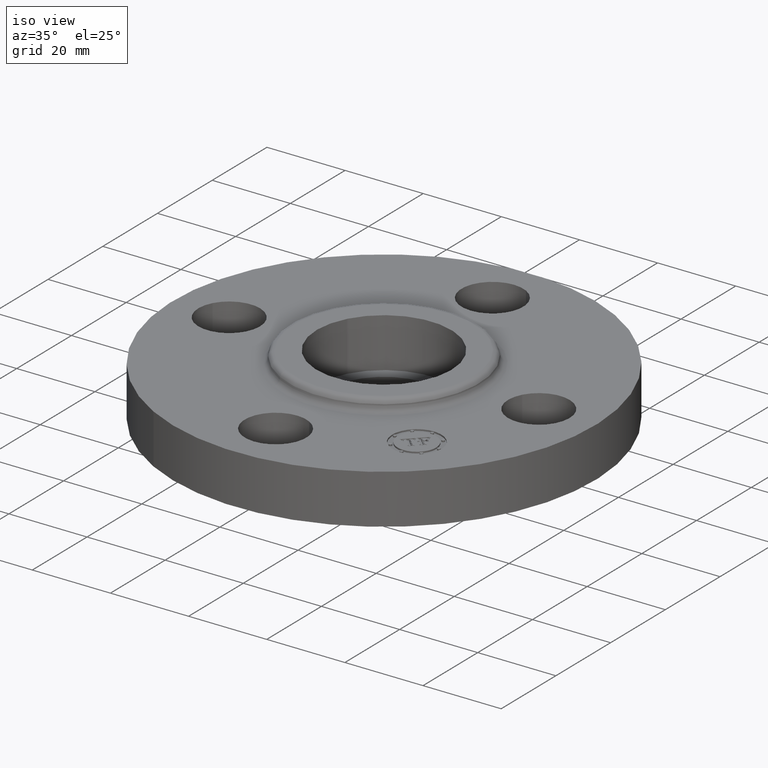
[diagram: clean part render]
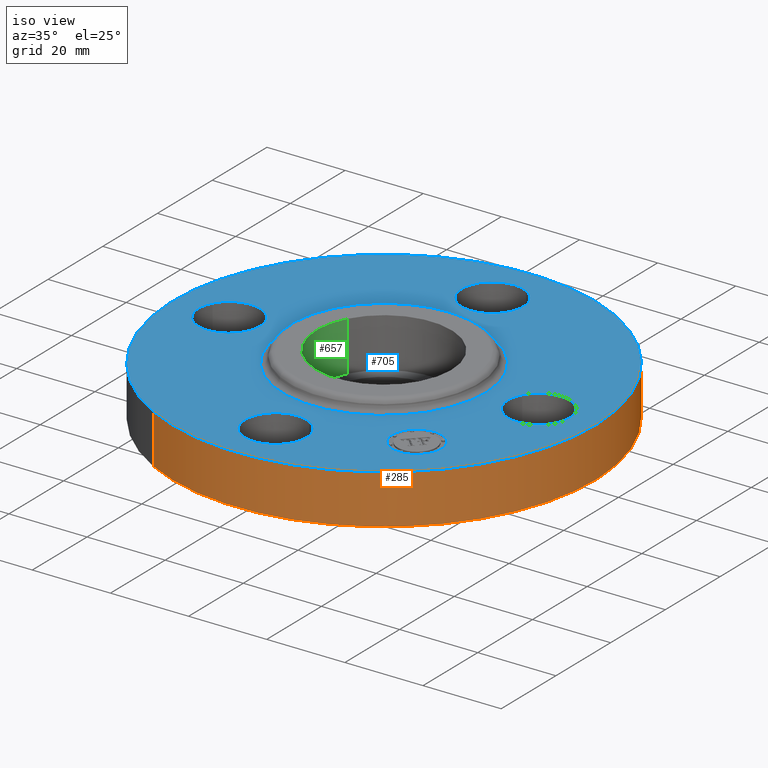
[diagram: same view with three faces highlighted in distinct colors, each labeled with its STEP entity id]
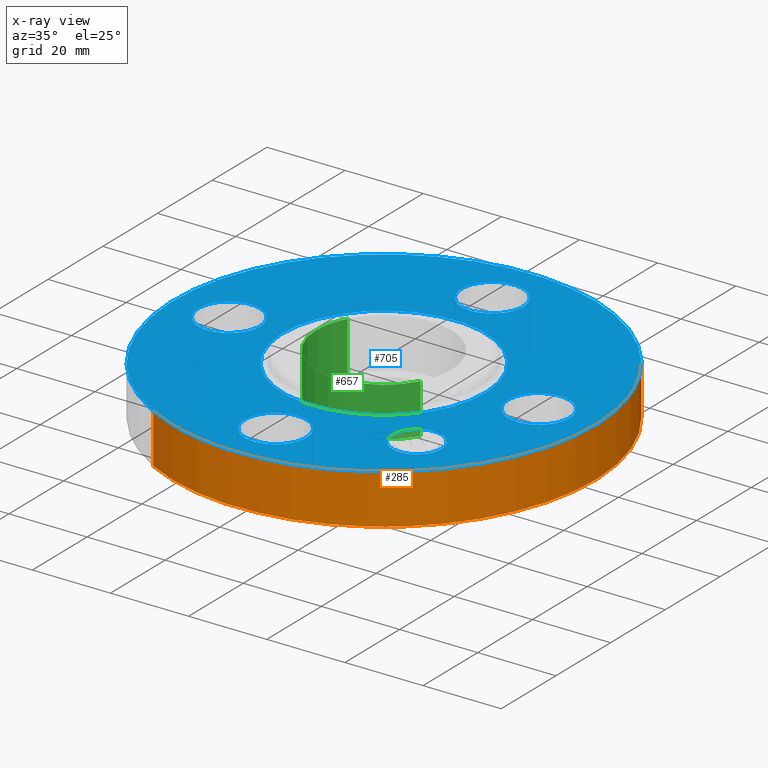
[diagram: x-ray of the same camera — body ghosted, the three highlighted faces saturated]
A machine part, iso view with three faces highlighted in distinct colors.
The next image is the same camera in x-ray (body ghosted, the three faces saturated) — at least one of them is partly hidden behind the body in this view.
Their STEP definitions:

[orange] entity #285 — the highlighted cylindrical surface (partial cylindrical patch) has radius 53.975 mm, axis along (0, 0, -1).
#159=AXIS2_PLACEMENT_3D('Circle Axis2P3D',#157,#158,$) ;
#246=AXIS2_PLACEMENT_3D('Cylinder Axis2P3D',#243,#244,#245) ;
#276=AXIS2_PLACEMENT_3D('Circle Axis2P3D',#274,#275,$) ;
#152=CARTESIAN_POINT('Vertex',(-1.01877926954,-1.86486294402,2.44773580232E-016)) ;
#154=CARTESIAN_POINT('Vertex',(1.01877926954,1.86486294402,2.44773580232E-016)) ;
#157=CARTESIAN_POINT('Axis2P3D Location',(0.,0.,0.)) ;
#243=CARTESIAN_POINT('Axis2P3D Location',(0.,0.,0.310000000001)) ;
#248=CARTESIAN_POINT('Line Origine',(-1.01877926954,-1.86486294402,0.250000000001)) ;
#252=CARTESIAN_POINT('Vertex',(-1.01877926954,-1.86486294402,0.500000000002)) ;
#259=CARTESIAN_POINT('Vertex',(1.01877926954,1.86486294402,0.500000000002)) ;
#262=CARTESIAN_POINT('Line Origine',(1.01877926954,1.86486294402,0.250000000001)) ;
#274=CARTESIAN_POINT('Axis2P3D Location',(0.,0.,0.500000000002)) ;
#158=DIRECTION('Axis2P3D Direction',(0.,0.,-0.0393700787402)) ;
#244=DIRECTION('Axis2P3D Direction',(0.,0.,-0.0393700787402)) ;
#245=DIRECTION('Axis2P3D XDirection',(0.0188750212049,0.0345504945626,0.)) ;
#249=DIRECTION('Vector Direction',(0.,0.,-0.0393700787402)) ;
#263=DIRECTION('Vector Direction',(0.,0.,-0.0393700787402)) ;
#275=DIRECTION('Axis2P3D Direction',(0.,0.,-0.0393700787402)) ;
#250=VECTOR('Line Direction',#249,0.0393700787402) ;
#264=VECTOR('Line Direction',#263,0.0393700787402) ;
#280=ORIENTED_EDGE('',*,*,#161,.F.) ;
#281=ORIENTED_EDGE('',*,*,#266,.T.) ;
#282=ORIENTED_EDGE('',*,*,#278,.T.) ;
#283=ORIENTED_EDGE('',*,*,#254,.F.) ;
#285=ADVANCED_FACE('PartBody',(#284),#247,.T.) ;
#160=CIRCLE('generated circle',#159,2.12500000001) ;
#277=CIRCLE('generated circle',#276,2.12500000001) ;
#247=CYLINDRICAL_SURFACE('generated cylinder',#246,2.12500000001) ;
#161=EDGE_CURVE('',#155,#153,#160,.T.) ;
#254=EDGE_CURVE('',#153,#253,#251,.F.) ;
#266=EDGE_CURVE('',#155,#260,#265,.F.) ;
#278=EDGE_CURVE('',#260,#253,#277,.T.) ;
#279=EDGE_LOOP('',(#280,#281,#282,#283)) ;
#284=FACE_OUTER_BOUND('',#279,.T.) ;
#251=LINE('Line',#248,#250) ;
#265=LINE('Line',#262,#264) ;
#153=VERTEX_POINT('',#152) ;
#155=VERTEX_POINT('',#154) ;
#253=VERTEX_POINT('',#252) ;
#260=VERTEX_POINT('',#259) ;

[blue] entity #705 — the highlighted planar face has unit normal (0, 0, -1).
#257=AXIS2_PLACEMENT_3D('Circle Axis2P3D',#255,#256,$) ;
#276=AXIS2_PLACEMENT_3D('Circle Axis2P3D',#274,#275,$) ;
#293=AXIS2_PLACEMENT_3D('Circle Axis2P3D',#291,#292,$) ;
#328=AXIS2_PLACEMENT_3D('Circle Axis2P3D',#326,#327,$) ;
#478=AXIS2_PLACEMENT_3D('Circle Axis2P3D',#476,#477,$) ;
#490=AXIS2_PLACEMENT_3D('Circle Axis2P3D',#488,#489,$) ;
#521=AXIS2_PLACEMENT_3D('Circle Axis2P3D',#519,#520,$) ;
#533=AXIS2_PLACEMENT_3D('Circle Axis2P3D',#531,#532,$) ;
#564=AXIS2_PLACEMENT_3D('Circle Axis2P3D',#562,#563,$) ;
#576=AXIS2_PLACEMENT_3D('Circle Axis2P3D',#574,#575,$) ;
#607=AXIS2_PLACEMENT_3D('Circle Axis2P3D',#605,#606,$) ;
#619=AXIS2_PLACEMENT_3D('Circle Axis2P3D',#617,#618,$) ;
#661=AXIS2_PLACEMENT_3D('Plane Axis2P3D',#658,#659,#660) ;
#689=AXIS2_PLACEMENT_3D('Circle Axis2P3D',#687,#688,$) ;
#698=AXIS2_PLACEMENT_3D('Circle Axis2P3D',#696,#697,$) ;
#252=CARTESIAN_POINT('Vertex',(-1.01877926954,-1.86486294402,0.500000000002)) ;
#255=CARTESIAN_POINT('Axis2P3D Location',(0.,0.,0.500000000002)) ;
#259=CARTESIAN_POINT('Vertex',(1.01877926954,1.86486294402,0.500000000002)) ;
#274=CARTESIAN_POINT('Axis2P3D Location',(0.,0.,0.500000000002)) ;
#291=CARTESIAN_POINT('Axis2P3D Location',(0.,0.,0.500000000002)) ;
#295=CARTESIAN_POINT('Vertex',(0.489179920005,0.895437837278,0.500000000002)) ;
#297=CARTESIAN_POINT('Vertex',(-0.489179920005,-0.895437837278,0.500000000002)) ;
#326=CARTESIAN_POINT('Axis2P3D Location',(0.,0.,0.500000000002)) ;
#466=CARTESIAN_POINT('Vertex',(0.148621916968,1.83205059419,0.500000000002)) ;
#473=CARTESIAN_POINT('Vertex',(-0.148621916968,1.28794940582,0.500000000002)) ;
#476=CARTESIAN_POINT('Axis2P3D Location',(-2.86567351002E-016,1.56000000001,0.500000000002)) ;
#488=CARTESIAN_POINT('Axis2P3D Location',(-2.86567351002E-016,1.56000000001,0.500000000002)) ;
#509=CARTESIAN_POINT('Vertex',(-1.83205059419,0.148621916968,0.500000000002)) ;
#516=CARTESIAN_POINT('Vertex',(-1.28794940582,-0.148621916968,0.500000000002)) ;
#519=CARTESIAN_POINT('Axis2P3D Location',(-1.56000000001,-1.91044900668E-016,0.500000000002)) ;
#531=CARTESIAN_POINT('Axis2P3D Location',(-1.56000000001,-1.91044900668E-016,0.500000000002)) ;
#552=CARTESIAN_POINT('Vertex',(-0.148621916968,-1.83205059419,0.500000000002)) ;
#559=CARTESIAN_POINT('Vertex',(0.148621916968,-1.28794940582,0.500000000002)) ;
#562=CARTESIAN_POINT('Axis2P3D Location',(-1.84218784217E-016,-1.56000000001,0.500000000002)) ;
#574=CARTESIAN_POINT('Axis2P3D Location',(-1.84218784217E-016,-1.56000000001,0.500000000002)) ;
#595=CARTESIAN_POINT('Vertex',(1.28794940582,0.148621916968,0.500000000002)) ;
#602=CARTESIAN_POINT('Vertex',(1.83205059419,-0.148621916968,0.500000000002)) ;
#605=CARTESIAN_POINT('Axis2P3D Location',(1.56000000001,0.,0.500000000002)) ;
#617=CARTESIAN_POINT('Axis2P3D Location',(1.56000000001,0.,0.500000000002)) ;
#658=CARTESIAN_POINT('Axis2P3D Location',(0.,2.12500000001,0.500000000002)) ;
#687=CARTESIAN_POINT('Axis2P3D Location',(1.10308657866,-1.10308657866,0.500000000002)) ;
#691=CARTESIAN_POINT('Vertex',(1.278095507,-0.928077650311,0.500000000002)) ;
#693=CARTESIAN_POINT('Vertex',(0.928077650311,-1.278095507,0.500000000002)) ;
#696=CARTESIAN_POINT('Axis2P3D Location',(1.10308657866,-1.10308657866,0.500000000002)) ;
#256=DIRECTION('Axis2P3D Direction',(0.,0.,-0.0393700787402)) ;
#275=DIRECTION('Axis2P3D Direction',(0.,0.,-0.0393700787402)) ;
#292=DIRECTION('Axis2P3D Direction',(0.,0.,-0.0393700787402)) ;
#327=DIRECTION('Axis2P3D Direction',(0.,0.,-0.0393700787402)) ;
#477=DIRECTION('Axis2P3D Direction',(0.,0.,-0.0393700787402)) ;
#489=DIRECTION('Axis2P3D Direction',(0.,0.,-0.0393700787402)) ;
#520=DIRECTION('Axis2P3D Direction',(-0.,0.,-0.0393700787402)) ;
#532=DIRECTION('Axis2P3D Direction',(-0.,0.,-0.0393700787402)) ;
#563=DIRECTION('Axis2P3D Direction',(0.,-0.,-0.0393700787402)) ;
#575=DIRECTION('Axis2P3D Direction',(0.,-0.,-0.0393700787402)) ;
#606=DIRECTION('Axis2P3D Direction',(0.,-0.,-0.0393700787402)) ;
#618=DIRECTION('Axis2P3D Direction',(0.,-0.,-0.0393700787402)) ;
#659=DIRECTION('Axis2P3D Direction',(0.,0.,-0.0393700787402)) ;
#660=DIRECTION('Axis2P3D XDirection',(0.0393700787402,0.,0.)) ;
#688=DIRECTION('Axis2P3D Direction',(0.,0.,-0.0393700787402)) ;
#697=DIRECTION('Axis2P3D Direction',(0.,0.,-0.0393700787402)) ;
#664=ORIENTED_EDGE('',*,*,#278,.F.) ;
#665=ORIENTED_EDGE('',*,*,#261,.F.) ;
#668=ORIENTED_EDGE('',*,*,#609,.T.) ;
#669=ORIENTED_EDGE('',*,*,#621,.T.) ;
#672=ORIENTED_EDGE('',*,*,#330,.T.) ;
#673=ORIENTED_EDGE('',*,*,#299,.T.) ;
#676=ORIENTED_EDGE('',*,*,#566,.T.) ;
#677=ORIENTED_EDGE('',*,*,#578,.T.) ;
#680=ORIENTED_EDGE('',*,*,#523,.T.) ;
#681=ORIENTED_EDGE('',*,*,#535,.T.) ;
#684=ORIENTED_EDGE('',*,*,#480,.T.) ;
#685=ORIENTED_EDGE('',*,*,#492,.T.) ;
#702=ORIENTED_EDGE('',*,*,#695,.T.) ;
#703=ORIENTED_EDGE('',*,*,#700,.T.) ;
#670=FACE_BOUND('',#667,.T.) ;
#674=FACE_BOUND('',#671,.T.) ;
#678=FACE_BOUND('',#675,.T.) ;
#682=FACE_BOUND('',#679,.T.) ;
#686=FACE_BOUND('',#683,.T.) ;
#704=FACE_BOUND('',#701,.T.) ;
#705=ADVANCED_FACE('PartBody',(#666,#670,#674,#678,#682,#686,#704),#662,.F.) ;
#258=CIRCLE('generated circle',#257,2.12500000001) ;
#277=CIRCLE('generated circle',#276,2.12500000001) ;
#294=CIRCLE('generated circle',#293,1.02034597787) ;
#329=CIRCLE('generated circle',#328,1.02034597787) ;
#479=CIRCLE('generated circle',#478,0.310000000001) ;
#491=CIRCLE('generated circle',#490,0.310000000001) ;
#522=CIRCLE('generated circle',#521,0.310000000001) ;
#534=CIRCLE('generated circle',#533,0.310000000001) ;
#565=CIRCLE('generated circle',#564,0.310000000001) ;
#577=CIRCLE('generated circle',#576,0.310000000001) ;
#608=CIRCLE('generated circle',#607,0.310000000001) ;
#620=CIRCLE('generated circle',#619,0.310000000001) ;
#690=CIRCLE('generated circle',#689,0.247500000001) ;
#699=CIRCLE('generated circle',#698,0.247500000001) ;
#261=EDGE_CURVE('',#253,#260,#258,.T.) ;
#278=EDGE_CURVE('',#260,#253,#277,.T.) ;
#299=EDGE_CURVE('',#296,#298,#294,.T.) ;
#330=EDGE_CURVE('',#298,#296,#329,.T.) ;
#480=EDGE_CURVE('',#467,#474,#479,.T.) ;
#492=EDGE_CURVE('',#474,#467,#491,.T.) ;
#523=EDGE_CURVE('',#510,#517,#522,.T.) ;
#535=EDGE_CURVE('',#517,#510,#534,.T.) ;
#566=EDGE_CURVE('',#553,#560,#565,.T.) ;
#578=EDGE_CURVE('',#560,#553,#577,.T.) ;
#609=EDGE_CURVE('',#596,#603,#608,.T.) ;
#621=EDGE_CURVE('',#603,#596,#620,.T.) ;
#695=EDGE_CURVE('',#692,#694,#690,.T.) ;
#700=EDGE_CURVE('',#694,#692,#699,.T.) ;
#663=EDGE_LOOP('',(#664,#665)) ;
#667=EDGE_LOOP('',(#668,#669)) ;
#671=EDGE_LOOP('',(#672,#673)) ;
#675=EDGE_LOOP('',(#676,#677)) ;
#679=EDGE_LOOP('',(#680,#681)) ;
#683=EDGE_LOOP('',(#684,#685)) ;
#701=EDGE_LOOP('',(#702,#703)) ;
#666=FACE_OUTER_BOUND('',#663,.T.) ;
#662=PLANE('',#661) ;
#253=VERTEX_POINT('',#252) ;
#260=VERTEX_POINT('',#259) ;
#296=VERTEX_POINT('',#295) ;
#298=VERTEX_POINT('',#297) ;
#467=VERTEX_POINT('',#466) ;
#474=VERTEX_POINT('',#473) ;
#510=VERTEX_POINT('',#509) ;
#517=VERTEX_POINT('',#516) ;
#553=VERTEX_POINT('',#552) ;
#560=VERTEX_POINT('',#559) ;
#596=VERTEX_POINT('',#595) ;
#603=VERTEX_POINT('',#602) ;
#692=VERTEX_POINT('',#691) ;
#694=VERTEX_POINT('',#693) ;

[green] entity #657 — the highlighted cylindrical surface (partial cylindrical patch) has radius 17.272 mm, axis along (0, 0, -1).
#51=AXIS2_PLACEMENT_3D('Circle Axis2P3D',#49,#50,$) ;
#449=AXIS2_PLACEMENT_3D('Circle Axis2P3D',#447,#448,$) ;
#632=AXIS2_PLACEMENT_3D('Cylinder Axis2P3D',#629,#630,#631) ;
#44=CARTESIAN_POINT('Vertex',(-0.596756142088,0.326009366252,0.12)) ;
#46=CARTESIAN_POINT('Vertex',(0.596756142088,-0.326009366252,0.12)) ;
#49=CARTESIAN_POINT('Axis2P3D Location',(0.,-6.99353086378E-017,0.12)) ;
#442=CARTESIAN_POINT('Vertex',(-0.596756142088,0.326009366252,0.620000000002)) ;
#444=CARTESIAN_POINT('Vertex',(0.596756142088,-0.326009366252,0.620000000002)) ;
#447=CARTESIAN_POINT('Axis2P3D Location',(1.74838271595E-017,-2.79741234551E-016,0.620000000002)) ;
#629=CARTESIAN_POINT('Axis2P3D Location',(0.,-6.99353086378E-017,0.616062992128)) ;
#634=CARTESIAN_POINT('Line Origine',(-0.596756142088,0.326009366252,0.370000000001)) ;
#639=CARTESIAN_POINT('Line Origine',(0.596756142088,-0.326009366252,0.370000000001)) ;
#50=DIRECTION('Axis2P3D Direction',(0.,0.,-0.0393700787402)) ;
#448=DIRECTION('Axis2P3D Direction',(0.,0.,-0.0393700787402)) ;
#630=DIRECTION('Axis2P3D Direction',(0.,0.,-0.0393700787402)) ;
#631=DIRECTION('Axis2P3D XDirection',(0.0345504945626,-0.0188750212049,0.)) ;
#635=DIRECTION('Vector Direction',(0.,0.,-0.0393700787402)) ;
#640=DIRECTION('Vector Direction',(0.,0.,-0.0393700787402)) ;
#636=VECTOR('Line Direction',#635,0.0393700787402) ;
#641=VECTOR('Line Direction',#640,0.0393700787402) ;
#652=ORIENTED_EDGE('',*,*,#451,.F.) ;
#653=ORIENTED_EDGE('',*,*,#643,.F.) ;
#654=ORIENTED_EDGE('',*,*,#53,.T.) ;
#655=ORIENTED_EDGE('',*,*,#638,.T.) ;
#657=ADVANCED_FACE('PartBody',(#656),#633,.F.) ;
#52=CIRCLE('generated circle',#51,0.680000000003) ;
#450=CIRCLE('generated circle',#449,0.680000000003) ;
#633=CYLINDRICAL_SURFACE('generated cylinder',#632,0.680000000003) ;
#53=EDGE_CURVE('',#47,#45,#52,.T.) ;
#451=EDGE_CURVE('',#445,#443,#450,.T.) ;
#638=EDGE_CURVE('',#45,#443,#637,.F.) ;
#643=EDGE_CURVE('',#47,#445,#642,.F.) ;
#651=EDGE_LOOP('',(#652,#653,#654,#655)) ;
#656=FACE_OUTER_BOUND('',#651,.T.) ;
#637=LINE('Line',#634,#636) ;
#642=LINE('Line',#639,#641) ;
#45=VERTEX_POINT('',#44) ;
#47=VERTEX_POINT('',#46) ;
#443=VERTEX_POINT('',#442) ;
#445=VERTEX_POINT('',#444) ;